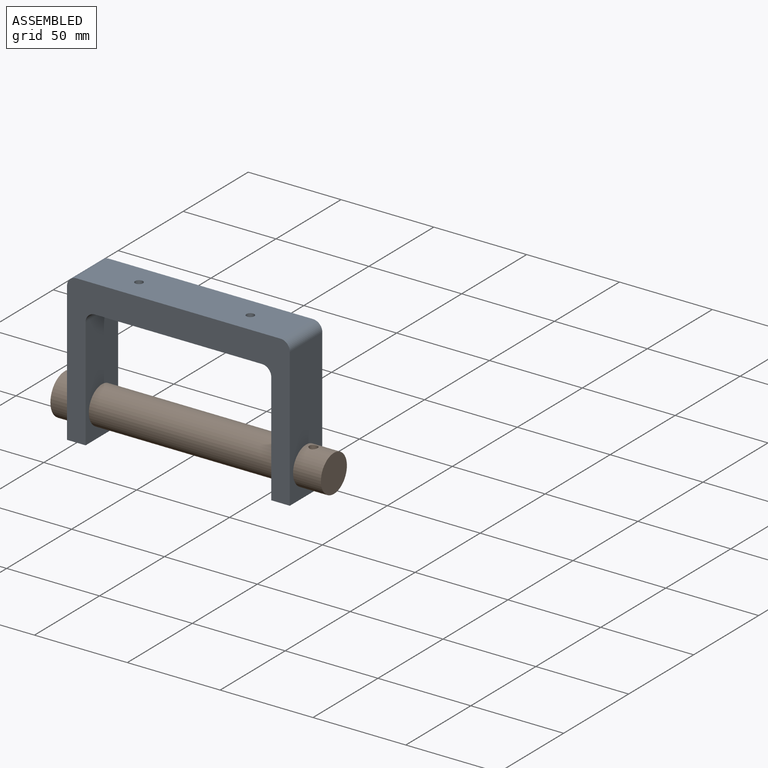
[diagram: assembled view]
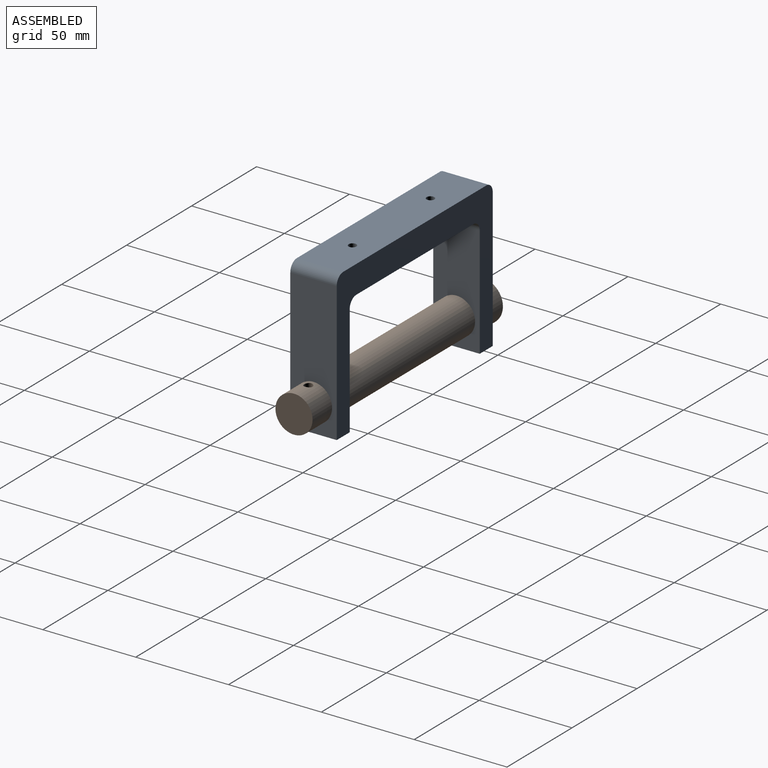
[diagram: assembled view, second angle]
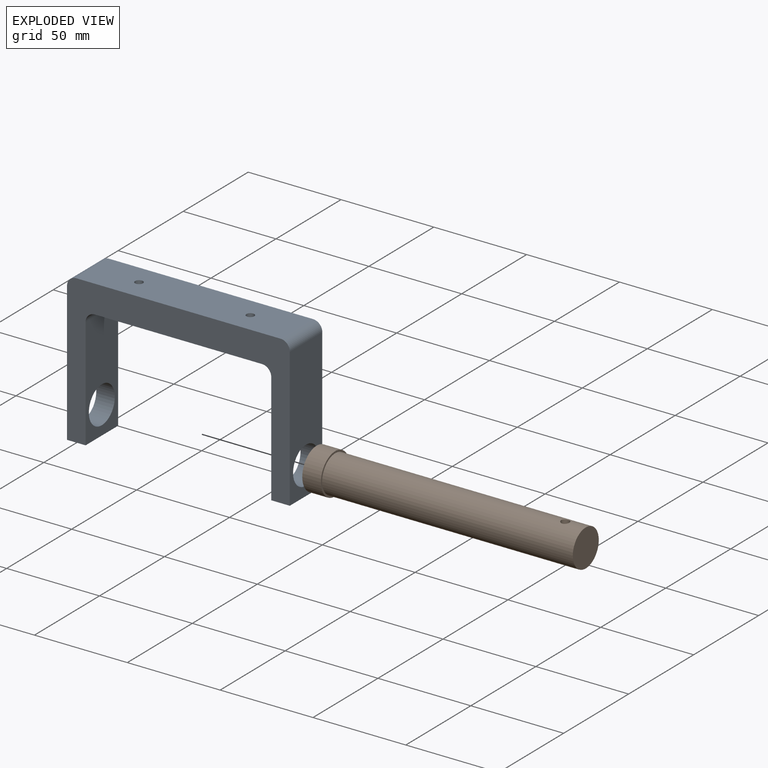
[diagram: exploded view]
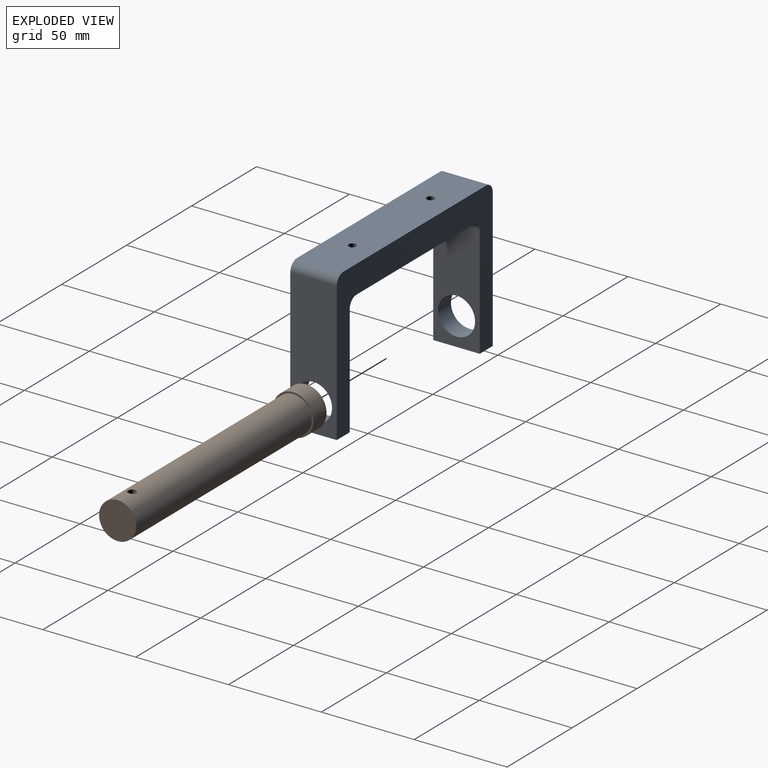
[diagram: exploded view, second angle]
ASSEMBLY  parts=2 mates=2
PART A: 18 faces, bbox 120x25x80 mm
  f0: cylinder r=2.1mm len=15mm, axis (0,0,1), area 197.9mm2, adj f5,f10
  f1: plane 25x10mm, normal (0,0,-1), area 250mm2, adj f2,f3,f6,f8
  f2: plane 120x80mm, normal (0,-1,0), area 3100mm2, adj f1,f4,f5,f6,f7,f8,f9,f10
  f3: plane 120x80mm, normal (0,1,0), area 3100mm2, adj f1,f4,f5,f6,f7,f8,f9,f10
  f4: plane 75x25mm, normal (1,0,0), area 1560.8mm2, adj f2,f3,f7,f14,f16
  f5: plane 110x25mm, normal (0,0,1), area 2722.3mm2, adj f0,f2,f3,f11,f14,f15
  f6: plane 75x25mm, normal (-1,0,0), area 1560.8mm2, adj f1,f2,f3,f15,f17
  f7: plane 25x10mm, normal (0,0,-1), area 250mm2, adj f2,f3,f4,f9
  f8: plane 60x25mm, normal (1,0,0), area 1185.8mm2, adj f1,f2,f3,f13,f17
  f9: plane 60x25mm, normal (-1,0,0), area 1185.8mm2, adj f2,f3,f7,f12,f16
  f10: plane 90x25mm, normal (0,0,-1), area 2222.3mm2, adj f0,f2,f3,f11,f12,f13
  f11: cylinder r=2.1mm len=15mm, axis (0,0,1), area 197.9mm2, adj f5,f10
  f12: cylinder r=5mm len=25mm, axis (0,-1,0), area 196.3mm2, adj f2,f3,f9,f10
  f13: cylinder r=5mm len=25mm, axis (0,1,0), area 196.3mm2, adj f2,f3,f8,f10
  f14: cylinder r=5mm len=25mm, axis (0,-1,0), area 196.3mm2, adj f2,f3,f4,f5
  f15: cylinder r=5mm len=25mm, axis (0,1,0), area 196.3mm2, adj f2,f3,f5,f6
  f16: cylinder r=10mm len=20mm, axis (1,0,0), area 628.3mm2, adj f4,f9
  f17: cylinder r=10mm len=20mm, axis (1,0,0), area 628.3mm2, adj f6,f8
PART B: 6 faces, bbox 22x145x22 mm
  f0: cylinder r=10mm len=135mm, axis (0,1,0), area 8450.2mm2, adj f3,f4,f5
  f1: cylinder r=11mm len=22mm, axis (0,1,0), area 691.2mm2, adj f2,f3
  f2: plane 22x22mm, normal (0,-1,0), area 380.1mm2, adj f1
  f3: plane 22x22mm, normal (0,1,0), area 66mm2, adj f0,f1
  f4: plane 20x20mm, normal (0,1,0), area 314.2mm2, adj f0
  f5: cylinder r=2.25mm len=20mm, axis (1,0,0), area 279.1mm2, adj f0
PLACE A t=(7.94,33.3,-37.84)mm
PLACE B rot(axis=(0.58,0.58,-0.58),120deg) t=(10.44,33.3,-77.84)mm
MATE slider B.f0 <-> A.f16  axis (1,0,0) through (15.44,33.3,-77.84)mm
MATE planar A.f6 <-> B.f1  axis (-1,0,0) through (-52.06,33.3,-50.81)mm
